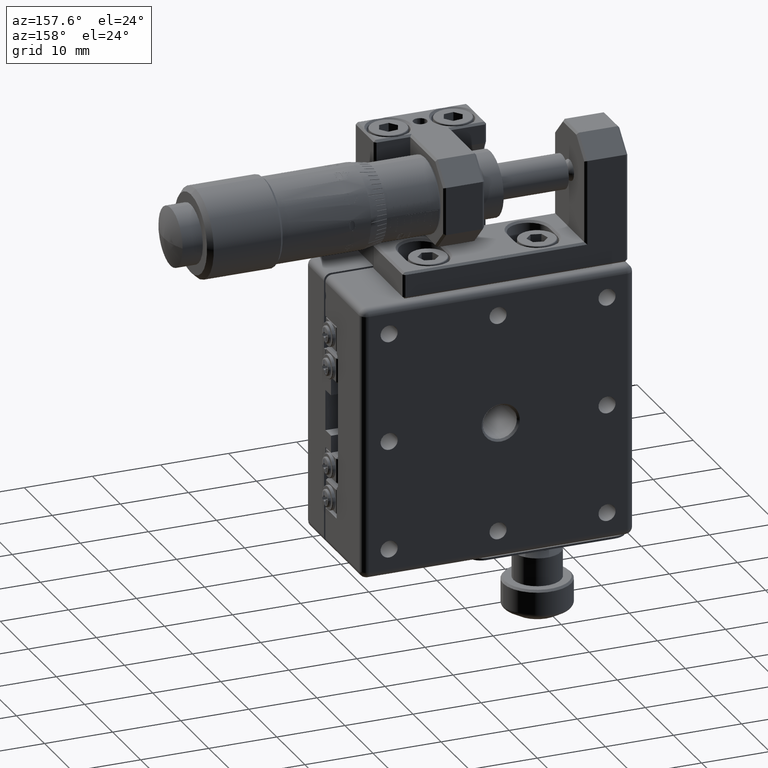
[diagram: clean part render]
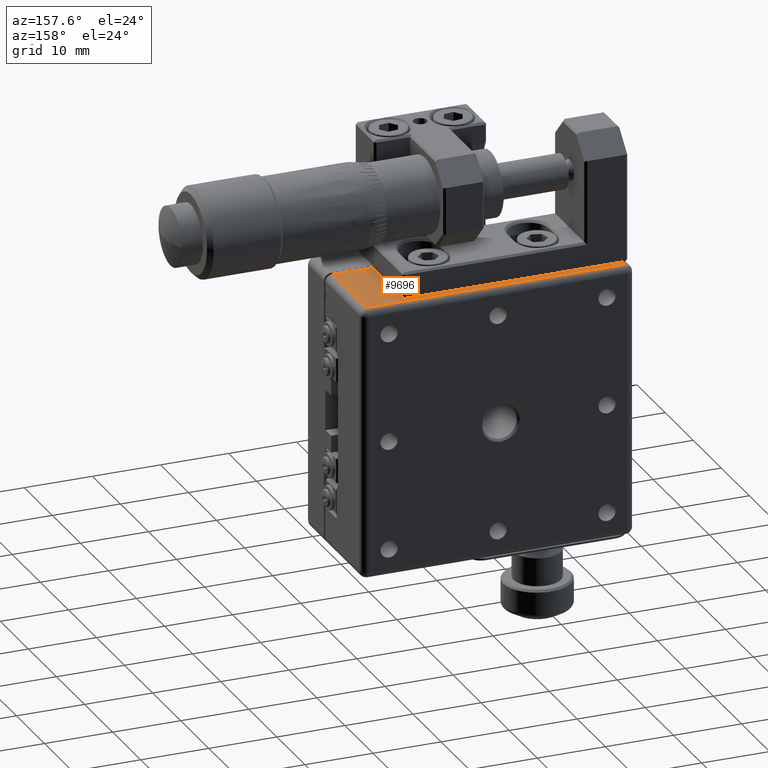
[diagram: same view with one face highlighted and labeled with its STEP entity id]
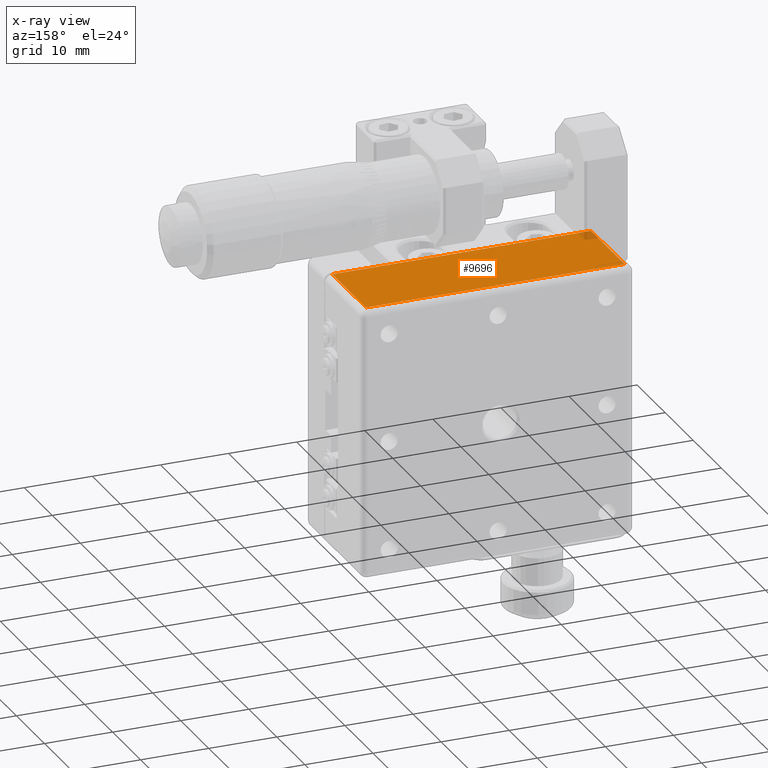
[diagram: x-ray of the same camera — body ghosted, the highlighted face saturated]
A machine part, auxiliary view. The second image highlights one B-rep face of the part: STEP entity #9696.
The next image is the same camera in x-ray: the body ghosted, the highlighted face saturated — about 1% of this face is hidden behind the body in this view.
In plain terms, the highlighted planar face has unit normal (0, 0, -1).
Its self-contained STEP definition (entity closure, byte-faithful):
#173 = CARTESIAN_POINT ( 'NONE',  ( 19.37967615857064985, -0.2917364600780720241, 20.00000000000000000 ) ) ;
#552 = EDGE_CURVE ( 'NONE', #22147, #57570, #19292, .T. ) ;
#2837 = LINE ( 'NONE', #20687, #18023 ) ;
#5260 = DIRECTION ( 'NONE',  ( -1.000000000000000000, 1.467610379793917947E-31, 0.000000000000000000 ) ) ;
#5284 = CARTESIAN_POINT ( 'NONE',  ( -18.62032384142935015, -0.2917364600780580353, 20.00000000000000000 ) ) ;
#5776 = CARTESIAN_POINT ( 'NONE',  ( -18.62032384142939989, 11.70826353992194058, 20.00000000000000000 ) ) ;
#8350 = DIRECTION ( 'NONE',  ( -1.466410258887589824E-31, 1.000000000000000000, 2.668805347656630130E-16 ) ) ;
#8875 = ORIENTED_EDGE ( 'NONE', *, *, #552, .T. ) ;
#9696 = ADVANCED_FACE ( 'NONE', ( #49657 ), #27457, .F. ) ;
#10209 = CARTESIAN_POINT ( 'NONE',  ( 20.37967615857065340, -0.2917364600780720241, 20.00000000000000000 ) ) ;
#10857 = ORIENTED_EDGE ( 'NONE', *, *, #55902, .F. ) ;
#11364 = DIRECTION ( 'NONE',  ( 1.466410258887589824E-31, -1.000000000000000000, -2.668805347656630130E-16 ) ) ;
#11534 = CARTESIAN_POINT ( 'NONE',  ( 19.37967615857060011, 11.70826353992191926, 20.00000000000000000 ) ) ;
#13499 = VECTOR ( 'NONE', #8350, 1000.000000000000000 ) ;
#16464 = VECTOR ( 'NONE', #5260, 1000.000000000000000 ) ;
#16762 = ORIENTED_EDGE ( 'NONE', *, *, #56967, .T. ) ;
#18023 = VECTOR ( 'NONE', #11364, 1000.000000000000000 ) ;
#19267 = DIRECTION ( 'NONE',  ( -1.000000000000000000, 1.467610379793917947E-31, 0.000000000000000000 ) ) ;
#19292 = LINE ( 'NONE', #32729, #16464 ) ;
#20687 = CARTESIAN_POINT ( 'NONE',  ( -18.62032384142935015, -0.2917364600780580353, 20.00000000000000000 ) ) ;
#22147 = VERTEX_POINT ( 'NONE', #11534 ) ;
#23579 = AXIS2_PLACEMENT_3D ( 'NONE', #53462, #54616, #40296 ) ;
#25192 = VERTEX_POINT ( 'NONE', #5284 ) ;
#27457 = PLANE ( 'NONE',  #23579 ) ;
#28053 = EDGE_LOOP ( 'NONE', ( #8875, #53109, #10857, #16762 ) ) ;
#28474 = VECTOR ( 'NONE', #19267, 1000.000000000000000 ) ;
#29939 = EDGE_CURVE ( 'NONE', #57570, #25192, #2837, .T. ) ;
#32729 = CARTESIAN_POINT ( 'NONE',  ( 20.37967615857060011, 11.70826353992191926, 20.00000000000000000 ) ) ;
#36811 = LINE ( 'NONE', #10209, #28474 ) ;
#39612 = VERTEX_POINT ( 'NONE', #173 ) ;
#40296 = DIRECTION ( 'NONE',  ( -1.000000000000000000, 0.000000000000000000, 0.000000000000000000 ) ) ;
#44292 = CARTESIAN_POINT ( 'NONE',  ( 19.37967615857060011, 12.70826353992191926, 20.00000000000000000 ) ) ;
#48389 = LINE ( 'NONE', #44292, #13499 ) ;
#49657 = FACE_OUTER_BOUND ( 'NONE', #28053, .T. ) ;
#53109 = ORIENTED_EDGE ( 'NONE', *, *, #29939, .T. ) ;
#53462 = CARTESIAN_POINT ( 'NONE',  ( 20.37967615857065340, -0.2917364600780720241, 20.00000000000000000 ) ) ;
#54616 = DIRECTION ( 'NONE',  ( 0.000000000000000000, 2.668805347656630130E-16, -1.000000000000000000 ) ) ;
#55902 = EDGE_CURVE ( 'NONE', #39612, #25192, #36811, .T. ) ;
#56967 = EDGE_CURVE ( 'NONE', #39612, #22147, #48389, .T. ) ;
#57570 = VERTEX_POINT ( 'NONE', #5776 ) ;